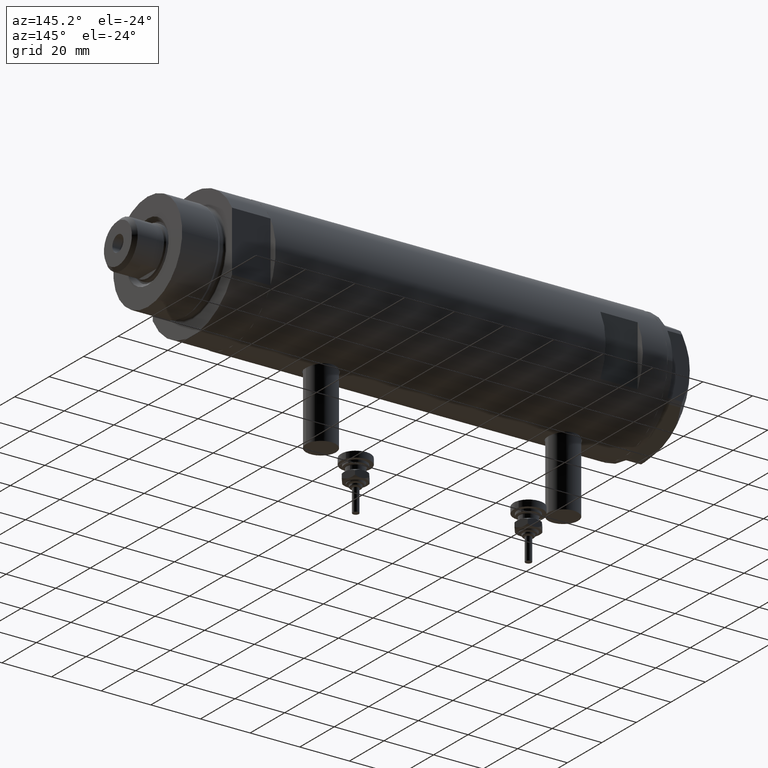
[diagram: clean part render]
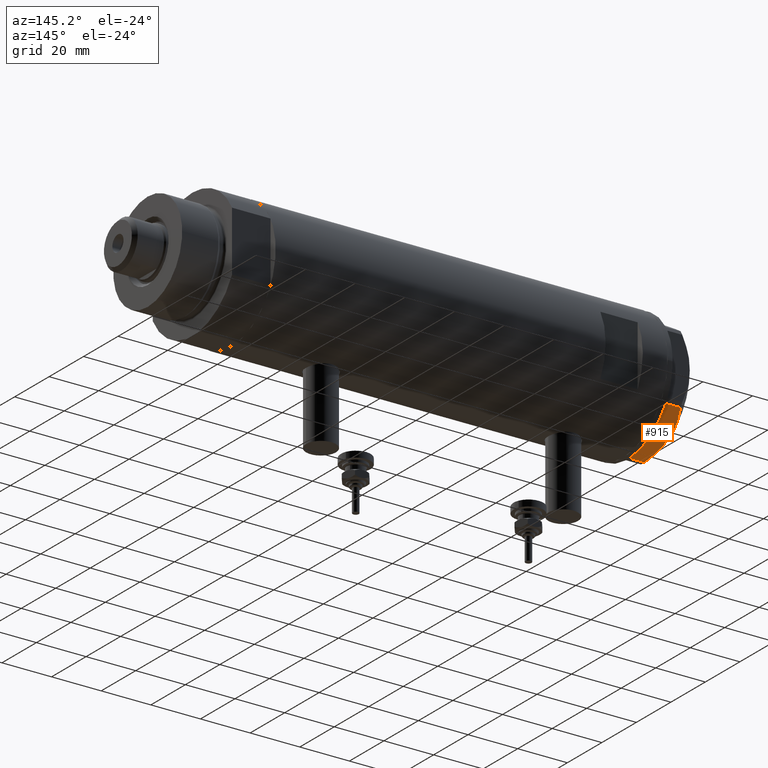
[diagram: same view with one face highlighted and labeled with its STEP entity id]
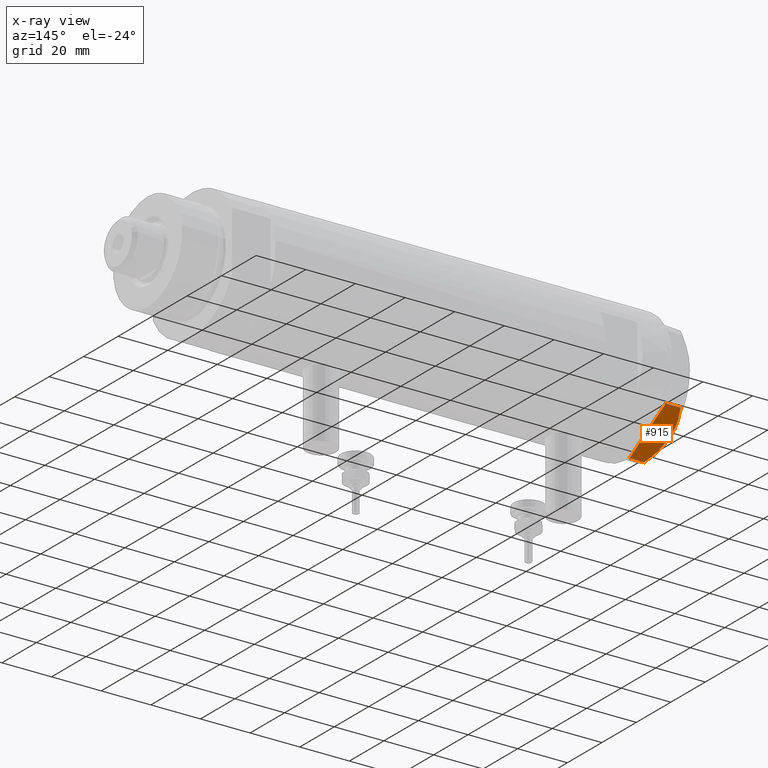
[diagram: x-ray of the same camera — body ghosted, the highlighted face saturated]
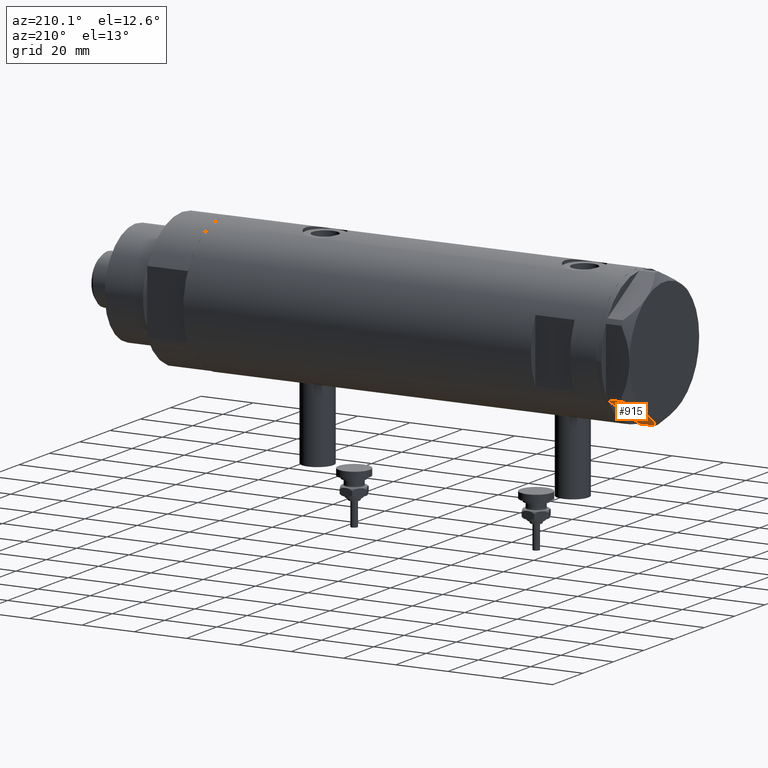
[diagram: same view with one face highlighted and labeled with its STEP entity id]
A machine part, auxiliary view. The second image highlights one B-rep face of the part: STEP entity #915.
The next image is the same camera in x-ray: the body ghosted, the highlighted face saturated — about 0% of this face is hidden behind the body in this view.
A second angle (auxiliary view) of the same face is appended — the face is thin or edge-on in the first view.
In plain terms, the highlighted planar face has unit normal (0, -0.5, 0.866).
Its self-contained STEP definition (entity closure, byte-faithful):
#92 = ORIENTED_EDGE ( 'NONE', *, *, #5893, .F. ) ;
#199 = CARTESIAN_POINT ( 'NONE',  ( 13.80210138309697498, 18.58946543380931260, 8.852712638955710034 ) ) ;
#247 = B_SPLINE_CURVE_WITH_KNOTS ( 'NONE', 3,
 ( #6014, #5147, #3169, #2707, #776, #199, #2640, #1620, #5664, #6074 ),
 .UNSPECIFIED., .F., .F.,
 ( 4, 2, 2, 2, 4 ),
 ( 0.001228959670438493522, 0.007497079744270714746, 0.01063113978118682655, 0.01219816979964488159, 0.01376519981810293489 ),
 .UNSPECIFIED. ) ;
#357 = VERTEX_POINT ( 'NONE', #4586 ) ;
#391 = DIRECTION ( 'NONE',  ( -0.8660254037844415942, 0.4999999999999949485, 0.000000000000000000 ) ) ;
#499 = CARTESIAN_POINT ( 'NONE',  ( 11.49999999999990408, 19.91858428704219364, 9.000000000000000000 ) ) ;
#690 = CARTESIAN_POINT ( 'NONE',  ( 4.357207709416038632, 24.04247733877631532, 7.570552255229681116 ) ) ;
#713 = LINE ( 'NONE', #1656, #2501 ) ;
#776 = CARTESIAN_POINT ( 'NONE',  ( 15.16323225988329959, 17.80361615569442790, 8.637313967156861949 ) ) ;
#785 = DIRECTION ( 'NONE',  ( 0.000000000000000000, 0.000000000000000000, -1.000000000000000000 ) ) ;
#864 = VERTEX_POINT ( 'NONE', #5436 ) ;
#915 = ADVANCED_FACE ( 'NONE', ( #2444 ), #2938, .F. ) ;
#967 = EDGE_CURVE ( 'NONE', #3968, #3998, #247, .T. ) ;
#992 = VECTOR ( 'NONE', #4364, 999.9999999999998863 ) ;
#1051 = CARTESIAN_POINT ( 'NONE',  ( 0.9999999999999297229, 25.98076211353316722, 0.000000000000000000 ) ) ;
#1111 = CARTESIAN_POINT ( 'NONE',  ( 22.99999999999981171, 13.27905619136164184, 9.000000000000000000 ) ) ;
#1313 = ORIENTED_EDGE ( 'NONE', *, *, #1506, .T. ) ;
#1401 = ORIENTED_EDGE ( 'NONE', *, *, #6029, .T. ) ;
#1405 = CARTESIAN_POINT ( 'NONE',  ( 5.229981517798067081, 23.53858114556529912, 7.892128867758392730 ) ) ;
#1506 = EDGE_CURVE ( 'NONE', #357, #3777, #2556, .T. ) ;
#1620 = CARTESIAN_POINT ( 'NONE',  ( 12.41906678023027588, 19.38796083407295967, 8.981686407609410949 ) ) ;
#1656 = CARTESIAN_POINT ( 'NONE',  ( 22.03005154776124286, 13.83905619136163168, 9.000000000000000000 ) ) ;
#1713 = B_SPLINE_CURVE_WITH_KNOTS ( 'NONE', 3,
 ( #499, #2422, #3346, #2808, #1405, #690, #4385, #5734, #2384, #6237 ),
 .UNSPECIFIED., .F., .F.,
 ( 4, 2, 2, 2, 4 ),
 ( 0.01376519981810293489, 0.01998941321701561136, 0.02154546656674377961, 0.02310151991647194786, 0.02621362661592828783 ),
 .UNSPECIFIED. ) ;
#1757 = VECTOR ( 'NONE', #4544, 999.9999999999998863 ) ;
#1854 = CARTESIAN_POINT ( 'NONE',  ( 22.99999999999981171, 13.27905619136164184, 0.000000000000000000 ) ) ;
#2030 = ORIENTED_EDGE ( 'NONE', *, *, #4476, .T. ) ;
#2067 = CARTESIAN_POINT ( 'NONE',  ( 22.99999999999981171, 13.27905619136164184, 0.000000000000000000 ) ) ;
#2384 = CARTESIAN_POINT ( 'NONE',  ( 1.799196345396824492, 25.51934588838292228, 6.431317509509382191 ) ) ;
#2391 = LINE ( 'NONE', #1854, #992 ) ;
#2422 = CARTESIAN_POINT ( 'NONE',  ( 9.678244919010086988, 20.97037507344920826, 9.000000000000001776 ) ) ;
#2444 = FACE_OUTER_BOUND ( 'NONE', #5148, .T. ) ;
#2501 = VECTOR ( 'NONE', #785, 1000.000000000000000 ) ;
#2515 = LINE ( 'NONE', #4025, #3472 ) ;
#2556 = LINE ( 'NONE', #2067, #1757 ) ;
#2640 = CARTESIAN_POINT ( 'NONE',  ( 13.34348161667005073, 18.85424967941157703, 8.907842277728345692 ) ) ;
#2675 = CARTESIAN_POINT ( 'NONE',  ( 0.9699484522385767304, 25.99811238272274849, 5.983800287807627960 ) ) ;
#2707 = CARTESIAN_POINT ( 'NONE',  ( 16.05322244309623869, 17.28978008384030929, 8.426899937603700153 ) ) ;
#2808 = CARTESIAN_POINT ( 'NONE',  ( 5.671686373602799591, 23.28356272816407824, 8.040681765829278405 ) ) ;
#2938 = PLANE ( 'NONE',  #3327 ) ;
#2953 = EDGE_CURVE ( 'NONE', #4711, #864, #3248, .T. ) ;
#2980 = ORIENTED_EDGE ( 'NONE', *, *, #5522, .T. ) ;
#3008 = DIRECTION ( 'NONE',  ( 0.000000000000000000, 0.000000000000000000, 1.000000000000000000 ) ) ;
#3169 = CARTESIAN_POINT ( 'NONE',  ( 18.67981377008996446, 15.77331687414937278, 7.629374868826049649 ) ) ;
#3248 = LINE ( 'NONE', #5637, #3836 ) ;
#3303 = ORIENTED_EDGE ( 'NONE', *, *, #967, .F. ) ;
#3327 = AXIS2_PLACEMENT_3D ( 'NONE', #1111, #4895, #4412 ) ;
#3346 = CARTESIAN_POINT ( 'NONE',  ( 7.884645426989626671, 22.00591022298560517, 8.707651728476925257 ) ) ;
#3472 = VECTOR ( 'NONE', #3008, 1000.000000000000000 ) ;
#3777 = VERTEX_POINT ( 'NONE', #5719 ) ;
#3836 = VECTOR ( 'NONE', #391, 999.9999999999998863 ) ;
#3960 = VERTEX_POINT ( 'NONE', #2675 ) ;
#3968 = VERTEX_POINT ( 'NONE', #4639 ) ;
#3998 = VERTEX_POINT ( 'NONE', #4822 ) ;
#4025 = CARTESIAN_POINT ( 'NONE',  ( 0.9699484522385816154, 25.99811238272274494, 9.000000000000000000 ) ) ;
#4364 = DIRECTION ( 'NONE',  ( -0.8660254037844415942, 0.4999999999999949485, 0.000000000000000000 ) ) ;
#4385 = CARTESIAN_POINT ( 'NONE',  ( 3.925137811030050994, 24.29193301091819635, 7.397272853991373687 ) ) ;
#4412 = DIRECTION ( 'NONE',  ( 0.8660254037844415942, -0.4999999999999949485, 0.000000000000000000 ) ) ;
#4476 = EDGE_CURVE ( 'NONE', #3968, #357, #713, .T. ) ;
#4544 = DIRECTION ( 'NONE',  ( -0.8660254037844415942, 0.4999999999999949485, 0.000000000000000000 ) ) ;
#4586 = CARTESIAN_POINT ( 'NONE',  ( 22.03005154776124286, 13.83905619136163168, 0.000000000000000000 ) ) ;
#4639 = CARTESIAN_POINT ( 'NONE',  ( 22.03005154776138852, 13.83905619136154819, 5.983800287807532037 ) ) ;
#4711 = VERTEX_POINT ( 'NONE', #1051 ) ;
#4822 = CARTESIAN_POINT ( 'NONE',  ( 11.49999999999990408, 19.91858428704219364, 9.000000000000000000 ) ) ;
#4895 = DIRECTION ( 'NONE',  ( -0.4999999999999949485, -0.8660254037844415942, 0.000000000000000000 ) ) ;
#4979 = ORIENTED_EDGE ( 'NONE', *, *, #2953, .T. ) ;
#5147 = CARTESIAN_POINT ( 'NONE',  ( 20.37350567916420019, 14.79546339452108050, 6.877782426143415506 ) ) ;
#5148 = EDGE_LOOP ( 'NONE', ( #3303, #2030, #1313, #2980, #4979, #1401, #92 ) ) ;
#5436 = CARTESIAN_POINT ( 'NONE',  ( 0.9699484522385816154, 25.99811238272274494, 0.000000000000000000 ) ) ;
#5522 = EDGE_CURVE ( 'NONE', #3777, #4711, #2391, .T. ) ;
#5637 = CARTESIAN_POINT ( 'NONE',  ( 22.99999999999981171, 13.27905619136164184, 0.000000000000000000 ) ) ;
#5664 = CARTESIAN_POINT ( 'NONE',  ( 11.95865151389051917, 19.65378171203322566, 9.000000000000005329 ) ) ;
#5719 = CARTESIAN_POINT ( 'NONE',  ( 21.99999999999987210, 13.85640646055121827, 0.000000000000000000 ) ) ;
#5734 = CARTESIAN_POINT ( 'NONE',  ( 2.640413878806739945, 25.03366871902167290, 6.844201024438365089 ) ) ;
#5893 = EDGE_CURVE ( 'NONE', #3998, #3960, #1713, .T. ) ;
#6014 = CARTESIAN_POINT ( 'NONE',  ( 22.03005154776138852, 13.83905619136154819, 5.983800287807532037 ) ) ;
#6029 = EDGE_CURVE ( 'NONE', #864, #3960, #2515, .T. ) ;
#6074 = CARTESIAN_POINT ( 'NONE',  ( 11.49999999999990408, 19.91858428704219364, 9.000000000000000000 ) ) ;
#6237 = CARTESIAN_POINT ( 'NONE',  ( 0.9699484522385767304, 25.99811238272274849, 5.983800287807627960 ) ) ;